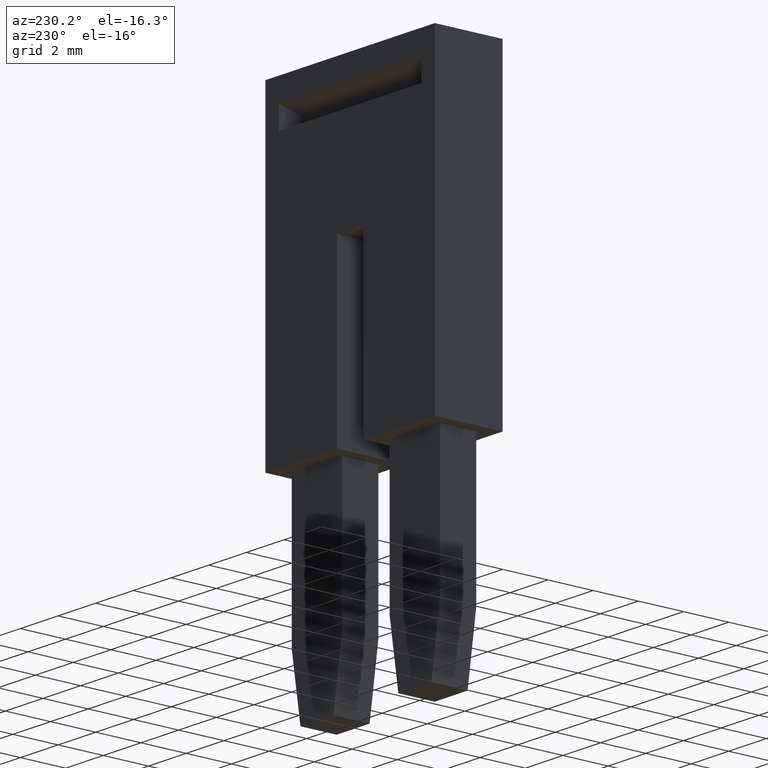
[diagram: clean part render]
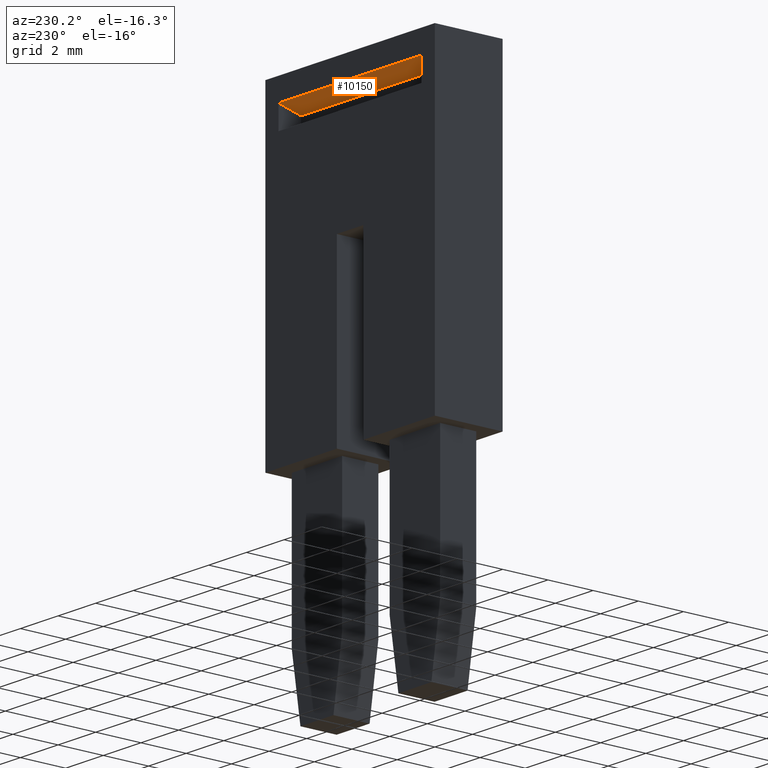
[diagram: same view with one face highlighted and labeled with its STEP entity id]
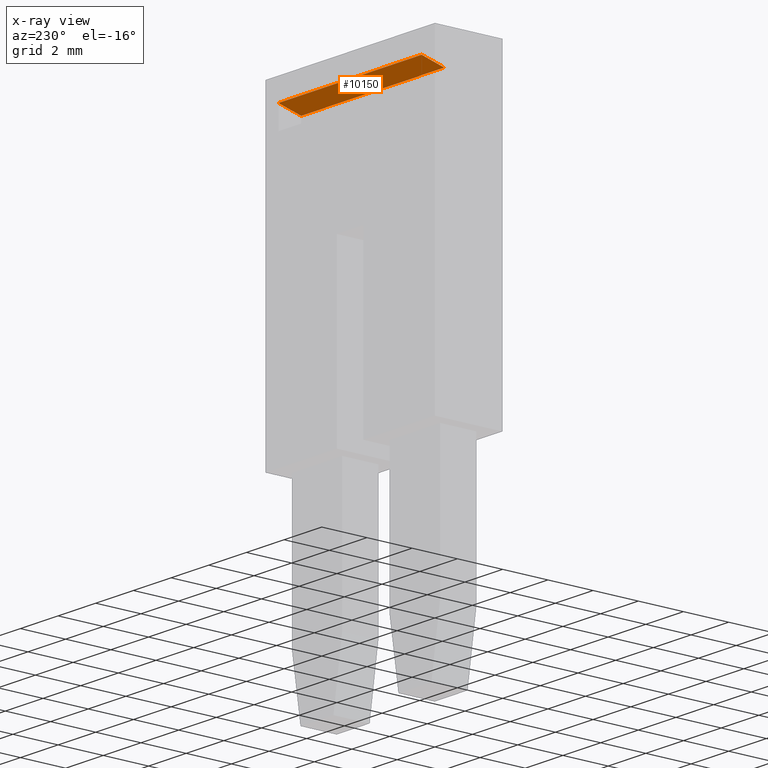
[diagram: x-ray of the same camera — body ghosted, the highlighted face saturated]
A machine part, auxiliary view. The second image highlights one B-rep face of the part: STEP entity #10150.
The next image is the same camera in x-ray: the body ghosted, the highlighted face saturated — about 0% of this face is hidden behind the body in this view.
In plain terms, the highlighted planar face has unit normal (-0, -0.2588, 0.9659).
Its self-contained STEP definition (entity closure, byte-faithful):
#670=CARTESIAN_POINT('',(5.60716722168473,-10.1410254037846,
50.0599999999988));
#680=VERTEX_POINT('',#670);
#710=CARTESIAN_POINT('',(5.60716722168473,-10.1410254037846,47.074984));
#720=DIRECTION('',(3.74687937002048E-30,-2.97483362866748E-17,1.));
#730=VECTOR('',#720,1.);
#740=LINE('',#710,#730);
#750=CARTESIAN_POINT('',(5.60716722168473,-10.1410254037846,
57.6599999999988));
#760=VERTEX_POINT('',#750);
#770=EDGE_CURVE('',#680,#760,#740,.T.);
#9410=CARTESIAN_POINT('',(4.60716722168477,-10.4089745962159,
50.0599999999988));
#9420=VERTEX_POINT('',#9410);
#9450=CARTESIAN_POINT('',(2.60716722168483,-10.9448729810784,
50.0599999999988));
#9460=DIRECTION('',(0.965925826289036,0.258819045102641,
-1.0723930924262E-16));
#9470=VECTOR('',#9460,1.);
#9480=LINE('',#9450,#9470);
#9490=EDGE_CURVE('',#9420,#680,#9480,.T.);
#9920=CARTESIAN_POINT('',(4.60716722168476,-10.4089745962159,
57.1399975999988));
#9930=DIRECTION('',(-0.258819045102641,0.965925826289036,
2.87346863084314E-17));
#9940=DIRECTION('',(0.965925826289036,0.258819045102641,
-1.0723930924262E-16));
#9950=AXIS2_PLACEMENT_3D('',#9920,#9930,#9940);
#9960=PLANE('',#9950);
#9970=CARTESIAN_POINT('',(4.60716722168477,-10.4089745962159,
60.6450159999975));
#9980=DIRECTION('',(-1.11022302462516E-16,-1.39868736281179E-29,-1.));
#9990=VECTOR('',#9980,1.);
#10000=LINE('',#9970,#9990);
#10010=CARTESIAN_POINT('',(4.60716722168477,-10.4089745962159,
57.6599999999988));
#10020=VERTEX_POINT('',#10010);
#10030=EDGE_CURVE('',#10020,#9420,#10000,.T.);
#10040=ORIENTED_EDGE('',*,*,#10030,.T.);
#10050=CARTESIAN_POINT('',(2.60716722168484,-10.9448729810784,
57.6599999999988));
#10060=DIRECTION('',(-0.965925826289036,-0.258819045102641,
1.0723930924262E-16));
#10070=VECTOR('',#10060,1.);
#10080=LINE('',#10050,#10070);
#10090=EDGE_CURVE('',#760,#10020,#10080,.T.);
#10100=ORIENTED_EDGE('',*,*,#10090,.T.);
#10110=ORIENTED_EDGE('',*,*,#770,.T.);
#10120=ORIENTED_EDGE('',*,*,#9490,.T.);
#10130=EDGE_LOOP('',(#10120,#10110,#10100,#10040));
#10140=FACE_OUTER_BOUND('',#10130,.T.);
#10150=ADVANCED_FACE('',(#10140),#9960,.F.);